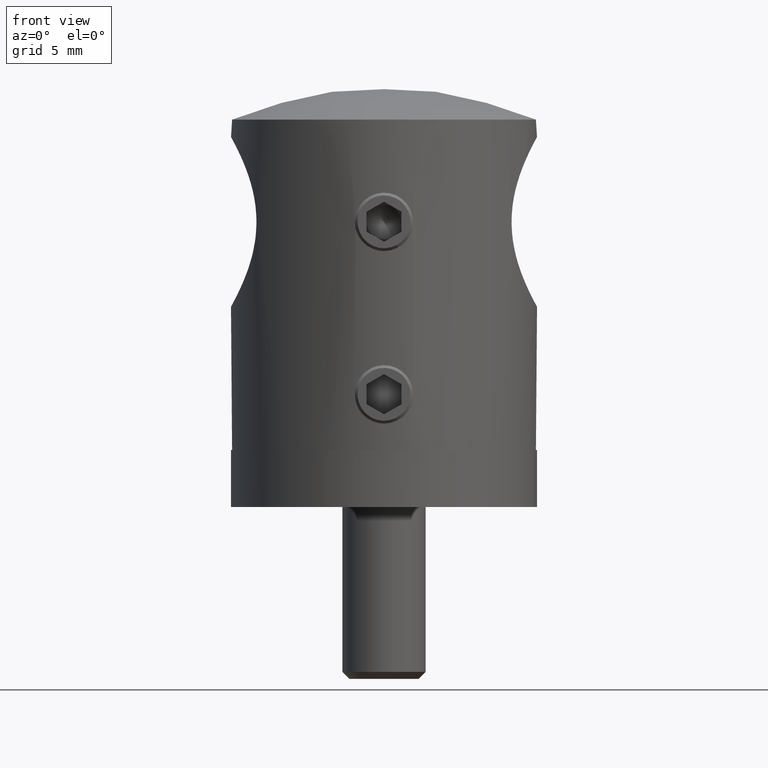
[diagram: clean part render]
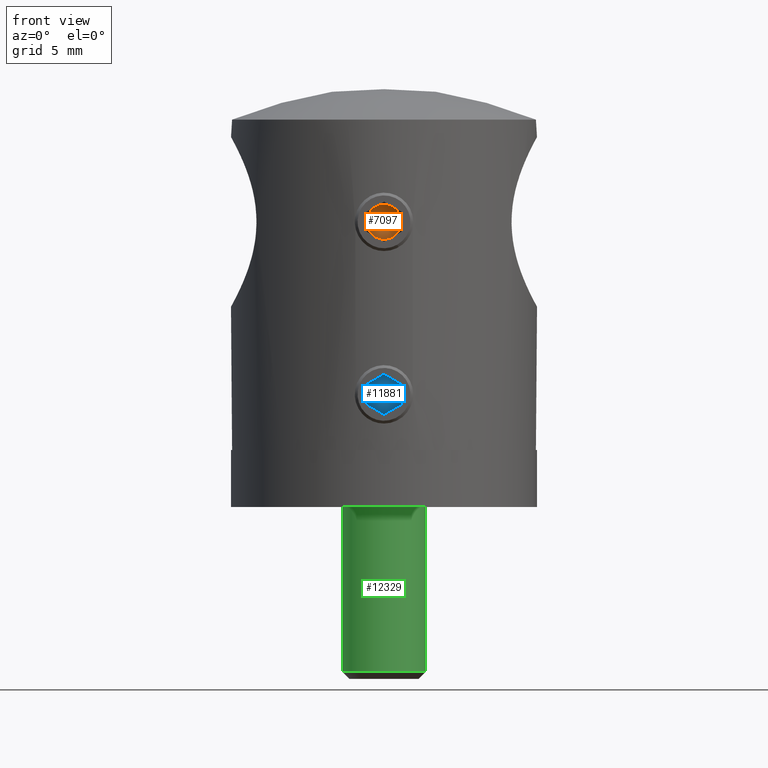
[diagram: same view with three faces highlighted in distinct colors, each labeled with its STEP entity id]
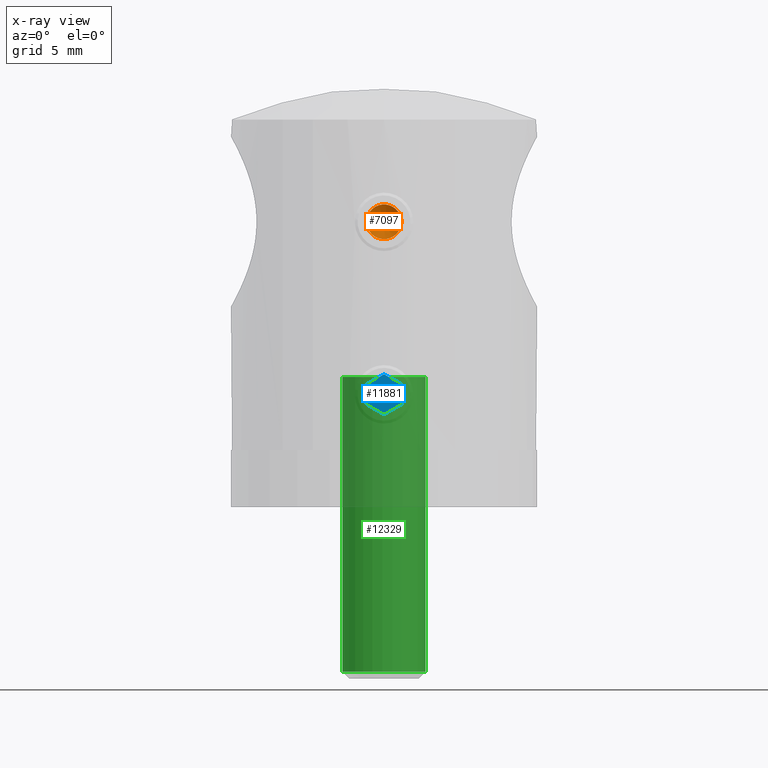
[diagram: x-ray of the same camera — body ghosted, the three highlighted faces saturated]
A machine part, front view with three faces highlighted in distinct colors.
The next image is the same camera in x-ray (body ghosted, the three faces saturated) — at least one of them is partly hidden behind the body in this view.
Their STEP definitions:

[orange] entity #7097 — the highlighted conical surface has half-angle 59 deg.
#866 = DIRECTION ( 'NONE',  ( 0.000000000000000000, 0.000000000000000000, -1.000000000000000000 ) ) ;
#913 = EDGE_CURVE ( 'NONE', #20903, #19298, #9043, .T. ) ;
#914 = VERTEX_POINT ( 'NONE', #20696 ) ;
#1666 = AXIS2_PLACEMENT_3D ( 'NONE', #7134, #8691, #10470 ) ;
#2148 = CARTESIAN_POINT ( 'NONE',  ( 2.000000000000000000, 0.000000000000000000, 0.000000000000000000 ) ) ;
#2859 = ORIENTED_EDGE ( 'NONE', *, *, #913, .T. ) ;
#3151 = AXIS2_PLACEMENT_3D ( 'NONE', #2148, #3869, #866 ) ;
#3313 = DIRECTION ( 'NONE',  ( 0.000000000000000000, 0.000000000000000000, 1.000000000000000000 ) ) ;
#3869 = DIRECTION ( 'NONE',  ( 1.000000000000000000, 0.000000000000000000, 1.144201389151751902E-16 ) ) ;
#4638 = DIRECTION ( 'NONE',  ( 0.000000000000000000, 0.000000000000000000, -1.000000000000000000 ) ) ;
#5245 = ORIENTED_EDGE ( 'NONE', *, *, #7110, .F. ) ;
#6157 = CARTESIAN_POINT ( 'NONE',  ( 2.000000000000000000, 6.071532165918824830E-15, -1.250000000000001998 ) ) ;
#6171 = CARTESIAN_POINT ( 'NONE',  ( 2.000000000000000000, 1.082531754730547524, 0.6249999999999996669 ) ) ;
#6664 = CARTESIAN_POINT ( 'NONE',  ( 2.000000000000000000, 0.000000000000000000, 0.000000000000000000 ) ) ;
#7097 = ADVANCED_FACE ( 'NONE', ( #15630 ), #15090, .F. ) ;
#7110 = EDGE_CURVE ( 'NONE', #20903, #12586, #10598, .T. ) ;
#7134 = CARTESIAN_POINT ( 'NONE',  ( 2.000000000000000000, 0.000000000000000000, 0.000000000000000000 ) ) ;
#7315 = EDGE_CURVE ( 'NONE', #9858, #914, #18742, .T. ) ;
#8083 = EDGE_LOOP ( 'NONE', ( #2859, #16949, #21655, #13127, #20400, #5245 ) ) ;
#8094 = AXIS2_PLACEMENT_3D ( 'NONE', #6664, #18506, #8431 ) ;
#8431 = DIRECTION ( 'NONE',  ( 0.000000000000000000, 0.000000000000000000, 1.000000000000000000 ) ) ;
#8691 = DIRECTION ( 'NONE',  ( -1.000000000000000000, 0.000000000000000000, 0.000000000000000000 ) ) ;
#8903 = AXIS2_PLACEMENT_3D ( 'NONE', #11517, #13098, #4638 ) ;
#9043 = CIRCLE ( 'NONE', #3151, 1.249999999999999556 ) ;
#9664 = AXIS2_PLACEMENT_3D ( 'NONE', #21281, #11155, #14560 ) ;
#9726 = CIRCLE ( 'NONE', #9664, 1.249999999999999556 ) ;
#9858 = VERTEX_POINT ( 'NONE', #18348 ) ;
#10470 = DIRECTION ( 'NONE',  ( 0.000000000000000000, 0.000000000000000000, 1.000000000000000000 ) ) ;
#10598 = CIRCLE ( 'NONE', #13865, 1.249999999999999556 ) ;
#10860 = VERTEX_POINT ( 'NONE', #6171 ) ;
#10970 = AXIS2_PLACEMENT_3D ( 'NONE', #21219, #18019, #17721 ) ;
#11155 = DIRECTION ( 'NONE',  ( -1.000000000000000000, 0.000000000000000000, 0.000000000000000000 ) ) ;
#11517 = CARTESIAN_POINT ( 'NONE',  ( 2.000000000000000000, 0.000000000000000000, 0.000000000000000000 ) ) ;
#12153 = EDGE_CURVE ( 'NONE', #914, #10860, #17894, .T. ) ;
#12586 = VERTEX_POINT ( 'NONE', #17410 ) ;
#12658 = EDGE_CURVE ( 'NONE', #12586, #9858, #9726, .T. ) ;
#13098 = DIRECTION ( 'NONE',  ( 1.000000000000000000, 0.000000000000000000, 1.144201389151751902E-16 ) ) ;
#13127 = ORIENTED_EDGE ( 'NONE', *, *, #7315, .F. ) ;
#13865 = AXIS2_PLACEMENT_3D ( 'NONE', #19999, #21347, #3313 ) ;
#14560 = DIRECTION ( 'NONE',  ( 0.000000000000000000, 0.000000000000000000, 1.000000000000000000 ) ) ;
#15090 = CONICAL_SURFACE ( 'NONE', #8903, 1.249999999999999556, 1.029744258676650093 ) ;
#15630 = FACE_OUTER_BOUND ( 'NONE', #8083, .T. ) ;
#16949 = ORIENTED_EDGE ( 'NONE', *, *, #20864, .F. ) ;
#17410 = CARTESIAN_POINT ( 'NONE',  ( 2.000000000000000000, -1.082531754730540863, -0.6250000000000023315 ) ) ;
#17721 = DIRECTION ( 'NONE',  ( 0.000000000000000000, 0.000000000000000000, 1.000000000000000000 ) ) ;
#17894 = CIRCLE ( 'NONE', #8094, 1.249999999999999556 ) ;
#18019 = DIRECTION ( 'NONE',  ( -1.000000000000000000, 0.000000000000000000, 0.000000000000000000 ) ) ;
#18348 = CARTESIAN_POINT ( 'NONE',  ( 2.000000000000000000, -1.082531754730547524, 0.6249999999999996669 ) ) ;
#18506 = DIRECTION ( 'NONE',  ( -1.000000000000000000, 0.000000000000000000, 0.000000000000000000 ) ) ;
#18742 = CIRCLE ( 'NONE', #1666, 1.249999999999999556 ) ;
#19298 = VERTEX_POINT ( 'NONE', #20328 ) ;
#19999 = CARTESIAN_POINT ( 'NONE',  ( 2.000000000000000000, 0.000000000000000000, 0.000000000000000000 ) ) ;
#20328 = CARTESIAN_POINT ( 'NONE',  ( 2.000000000000000000, 1.082531754730547524, -0.6249999999999996669 ) ) ;
#20400 = ORIENTED_EDGE ( 'NONE', *, *, #12658, .F. ) ;
#20696 = CARTESIAN_POINT ( 'NONE',  ( 2.000000000000000000, 0.000000000000000000, 1.249999999999996669 ) ) ;
#20864 = EDGE_CURVE ( 'NONE', #10860, #19298, #21726, .T. ) ;
#20903 = VERTEX_POINT ( 'NONE', #6157 ) ;
#21219 = CARTESIAN_POINT ( 'NONE',  ( 2.000000000000000000, 0.000000000000000000, 0.000000000000000000 ) ) ;
#21281 = CARTESIAN_POINT ( 'NONE',  ( 2.000000000000000000, 0.000000000000000000, 0.000000000000000000 ) ) ;
#21347 = DIRECTION ( 'NONE',  ( -1.000000000000000000, 0.000000000000000000, 0.000000000000000000 ) ) ;
#21655 = ORIENTED_EDGE ( 'NONE', *, *, #12153, .F. ) ;
#21726 = CIRCLE ( 'NONE', #10970, 1.249999999999999556 ) ;

[blue] entity #11881 — the highlighted planar face has unit normal (0, -1, 0).
#345 = EDGE_CURVE ( 'NONE', #4163, #13679, #16492, .T. ) ;
#514 = VECTOR ( 'NONE', #21683, 1000.000000000000000 ) ;
#904 = DIRECTION ( 'NONE',  ( 0.000000000000000000, -1.000000000000000000, 0.000000000000000000 ) ) ;
#1503 = VECTOR ( 'NONE', #904, 1000.000000000000000 ) ;
#1580 = VERTEX_POINT ( 'NONE', #11515 ) ;
#2274 = CARTESIAN_POINT ( 'NONE',  ( 3.000000000000000888, -0.7216878364870342732, 1.249999999999999112 ) ) ;
#2463 = CARTESIAN_POINT ( 'NONE',  ( 3.000000000000000888, -2.165063509461095936, -1.249999999999999778 ) ) ;
#2661 = EDGE_CURVE ( 'NONE', #10804, #1580, #8440, .T. ) ;
#3537 = EDGE_CURVE ( 'NONE', #13679, #10804, #16644, .T. ) ;
#3988 = CARTESIAN_POINT ( 'NONE',  ( 3.000000000000000888, 0.7216878364870323859, -1.250000000000001554 ) ) ;
#4163 = VERTEX_POINT ( 'NONE', #3988 ) ;
#4225 = EDGE_CURVE ( 'NONE', #9434, #4163, #20886, .T. ) ;
#4382 = EDGE_CURVE ( 'NONE', #1580, #14751, #16153, .T. ) ;
#4696 = AXIS2_PLACEMENT_3D ( 'NONE', #2463, #14303, #17657 ) ;
#6242 = CARTESIAN_POINT ( 'NONE',  ( 3.000000000000000888, 0.7216878364870323859, -1.250000000000001554 ) ) ;
#7354 = LINE ( 'NONE', #8142, #10794 ) ;
#7524 = VECTOR ( 'NONE', #17966, 1000.000000000000114 ) ;
#8108 = ORIENTED_EDGE ( 'NONE', *, *, #4225, .T. ) ;
#8142 = CARTESIAN_POINT ( 'NONE',  ( 3.000000000000000888, -1.443375672974067658, -1.734723475976807094E-15 ) ) ;
#8440 = LINE ( 'NONE', #19405, #1503 ) ;
#8544 = ORIENTED_EDGE ( 'NONE', *, *, #3537, .T. ) ;
#8968 = CARTESIAN_POINT ( 'NONE',  ( 3.000000000000000888, -1.443375672974067658, -1.734723475976807094E-15 ) ) ;
#9434 = VERTEX_POINT ( 'NONE', #16683 ) ;
#9501 = EDGE_CURVE ( 'NONE', #14751, #9434, #7354, .T. ) ;
#10318 = CARTESIAN_POINT ( 'NONE',  ( 3.000000000000000888, 0.7216878364870328300, 1.249999999999999334 ) ) ;
#10794 = VECTOR ( 'NONE', #18298, 1000.000000000000000 ) ;
#10804 = VERTEX_POINT ( 'NONE', #10318 ) ;
#10851 = DIRECTION ( 'NONE',  ( 0.000000000000000000, -0.5000000000000000000, -0.8660254037844385966 ) ) ;
#11265 = ORIENTED_EDGE ( 'NONE', *, *, #345, .T. ) ;
#11515 = CARTESIAN_POINT ( 'NONE',  ( 3.000000000000000888, -0.7216878364870342732, 1.249999999999999112 ) ) ;
#11881 = ADVANCED_FACE ( 'NONE', ( #19223 ), #12615, .T. ) ;
#12615 = PLANE ( 'NONE',  #4696 ) ;
#13438 = ORIENTED_EDGE ( 'NONE', *, *, #2661, .T. ) ;
#13679 = VERTEX_POINT ( 'NONE', #19681 ) ;
#14040 = ORIENTED_EDGE ( 'NONE', *, *, #9501, .T. ) ;
#14303 = DIRECTION ( 'NONE',  ( 1.000000000000000000, 0.000000000000000000, 0.000000000000000000 ) ) ;
#14751 = VERTEX_POINT ( 'NONE', #8968 ) ;
#15275 = EDGE_LOOP ( 'NONE', ( #20335, #14040, #8108, #11265, #8544, #13438 ) ) ;
#15629 = VECTOR ( 'NONE', #10851, 1000.000000000000227 ) ;
#15931 = CARTESIAN_POINT ( 'NONE',  ( 3.000000000000000888, 1.443375672974064772, 4.336808689942017736E-16 ) ) ;
#16153 = LINE ( 'NONE', #2274, #15629 ) ;
#16492 = LINE ( 'NONE', #6242, #7524 ) ;
#16644 = LINE ( 'NONE', #15931, #514 ) ;
#16683 = CARTESIAN_POINT ( 'NONE',  ( 3.000000000000000888, -0.7216878364870338292, -1.249999999999999778 ) ) ;
#17172 = DIRECTION ( 'NONE',  ( 0.000000000000000000, 1.000000000000000000, -5.551115123125782702E-17 ) ) ;
#17657 = DIRECTION ( 'NONE',  ( -0.000000000000000000, 0.000000000000000000, -1.000000000000000000 ) ) ;
#17966 = DIRECTION ( 'NONE',  ( 0.000000000000000000, 0.4999999999999999445, 0.8660254037844385966 ) ) ;
#17978 = VECTOR ( 'NONE', #17172, 1000.000000000000000 ) ;
#18298 = DIRECTION ( 'NONE',  ( -0.000000000000000000, 0.4999999999999996114, -0.8660254037844388186 ) ) ;
#19223 = FACE_OUTER_BOUND ( 'NONE', #15275, .T. ) ;
#19405 = CARTESIAN_POINT ( 'NONE',  ( 3.000000000000000888, 0.7216878364870328300, 1.249999999999999334 ) ) ;
#19681 = CARTESIAN_POINT ( 'NONE',  ( 3.000000000000000888, 1.443375672974064772, 4.336808689942017736E-16 ) ) ;
#20335 = ORIENTED_EDGE ( 'NONE', *, *, #4382, .T. ) ;
#20810 = CARTESIAN_POINT ( 'NONE',  ( 3.000000000000000888, -0.7216878364870338292, -1.249999999999999778 ) ) ;
#20886 = LINE ( 'NONE', #20810, #17978 ) ;
#21683 = DIRECTION ( 'NONE',  ( 0.000000000000000000, -0.4999999999999998890, 0.8660254037844387076 ) ) ;

[green] entity #12329 — the highlighted cylindrical surface (bore or boss wall) has radius 3 mm, axis along (-0, -0, -1).
#411 = DIRECTION ( 'NONE',  ( 3.081487911019577365E-33, -1.000000000000000000, 1.725633230170963324E-31 ) ) ;
#797 = ORIENTED_EDGE ( 'NONE', *, *, #16271, .T. ) ;
#3220 = CARTESIAN_POINT ( 'NONE',  ( -4.814824860968089633E-32, -11.99999999999999645, -3.000000000000012879 ) ) ;
#3478 = VERTEX_POINT ( 'NONE', #3220 ) ;
#3488 = CARTESIAN_POINT ( 'NONE',  ( 0.000000000000000000, -12.50000000000000000, 1.733336949948512268E-30 ) ) ;
#5176 = DIRECTION ( 'NONE',  ( 0.000000000000000000, 0.000000000000000000, -1.000000000000000000 ) ) ;
#5567 = VERTEX_POINT ( 'NONE', #13283 ) ;
#5884 = EDGE_LOOP ( 'NONE', ( #797 ) ) ;
#6148 = ORIENTED_EDGE ( 'NONE', *, *, #19375, .T. ) ;
#6871 = DIRECTION ( 'NONE',  ( 3.081487911019577365E-33, -1.000000000000000000, 1.725633230170963324E-31 ) ) ;
#7530 = CARTESIAN_POINT ( 'NONE',  ( -4.814824860968089633E-32, -11.99999999999999645, 3.274080905458300950E-30 ) ) ;
#7599 = DIRECTION ( 'NONE',  ( 0.000000000000000000, 0.000000000000000000, -1.000000000000000000 ) ) ;
#11543 = EDGE_LOOP ( 'NONE', ( #6148 ) ) ;
#12329 = ADVANCED_FACE ( 'NONE', ( #21355, #13194 ), #16059, .T. ) ;
#12382 = AXIS2_PLACEMENT_3D ( 'NONE', #7530, #15953, #7599 ) ;
#13194 = FACE_OUTER_BOUND ( 'NONE', #11543, .T. ) ;
#13283 = CARTESIAN_POINT ( 'NONE',  ( 4.814824860968089633E-32, 9.199999999999999289, -3.000000000000011990 ) ) ;
#13914 = DIRECTION ( 'NONE',  ( 0.000000000000000000, 0.000000000000000000, -1.000000000000000000 ) ) ;
#14356 = CIRCLE ( 'NONE', #20165, 3.000000000000011990 ) ;
#15740 = CIRCLE ( 'NONE', #12382, 3.000000000000012879 ) ;
#15953 = DIRECTION ( 'NONE',  ( -3.081487911019577365E-33, 1.000000000000000000, -1.725633230170963324E-31 ) ) ;
#16059 = CYLINDRICAL_SURFACE ( 'NONE', #19845, 3.000000000000012879 ) ;
#16271 = EDGE_CURVE ( 'NONE', #3478, #3478, #15740, .T. ) ;
#17270 = CARTESIAN_POINT ( 'NONE',  ( 4.814824860968089633E-32, 9.199999999999999289, -2.600005424922768402E-30 ) ) ;
#19375 = EDGE_CURVE ( 'NONE', #5567, #5567, #14356, .T. ) ;
#19845 = AXIS2_PLACEMENT_3D ( 'NONE', #3488, #6871, #5176 ) ;
#20165 = AXIS2_PLACEMENT_3D ( 'NONE', #17270, #411, #13914 ) ;
#21355 = FACE_OUTER_BOUND ( 'NONE', #5884, .T. ) ;